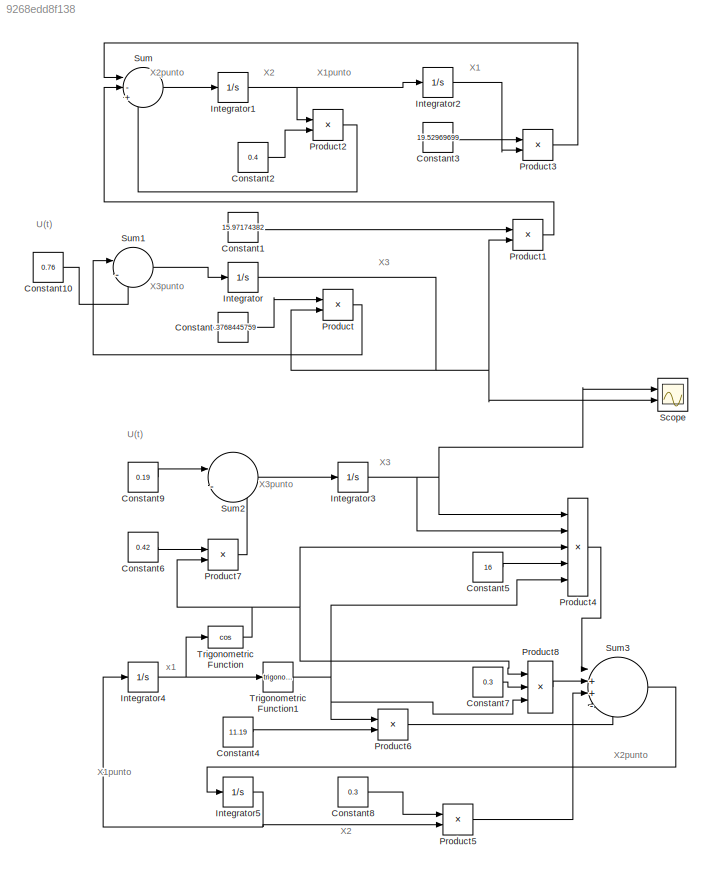
MODEL slx_9268edd8f138
KIND model
BLOCK [Constant] Constant
  Value = 0.3768445759
BLOCK [Constant] Constant1
  Value = 15.97174382
BLOCK [Constant] Constant10
  Value = 0.76
BLOCK [Constant] Constant2
  Value = 0.4
BLOCK [Constant] Constant3
  Value = 19.52969699
BLOCK [Constant] Constant4
  Value = 11.19
BLOCK [Constant] Constant5
  Value = 16
BLOCK [Constant] Constant6
  Value = 0.42
BLOCK [Constant] Constant7
  Value = 0.3
BLOCK [Constant] Constant8
  Value = 0.3
BLOCK [Constant] Constant9
  Value = 0.19
BLOCK [Integrator] Integrator
  InitialCondition = 3
  Ports = [1, 1]
BLOCK [Integrator] Integrator1
  Ports = [1, 1]
BLOCK [Integrator] Integrator2
  Ports = [1, 1]
BLOCK [Integrator] Integrator3
  InitialCondition = -1
  Ports = [1, 1]
BLOCK [Integrator] Integrator4
  InitialCondition = 1
  Ports = [1, 1]
BLOCK [Integrator] Integrator5
  Ports = [1, 1]
BLOCK [Product] Product
  InputSameDT = off
  OutDataTypeStr = Inherit: Inherit via internal rule
  Ports = [2, 1]
  RndMeth = Floor
  SaturateOnIntegerOverflow = off
BLOCK [Product] Product1
  InputSameDT = off
  OutDataTypeStr = Inherit: Inherit via internal rule
  Ports = [2, 1]
  RndMeth = Floor
  SaturateOnIntegerOverflow = off
BLOCK [Product] Product2
  InputSameDT = off
  OutDataTypeStr = Inherit: Inherit via internal rule
  Ports = [2, 1]
  RndMeth = Floor
  SaturateOnIntegerOverflow = off
BLOCK [Product] Product3
  InputSameDT = off
  OutDataTypeStr = Inherit: Inherit via internal rule
  Ports = [2, 1]
  RndMeth = Floor
  SaturateOnIntegerOverflow = off
BLOCK [Product] Product4
  Inputs = 5
  OutDataTypeStr = Inherit: Inherit via internal rule
  Ports = [5, 1]
  RndMeth = Floor
  SaturateOnIntegerOverflow = off
BLOCK [Product] Product5
  InputSameDT = off
  OutDataTypeStr = Inherit: Inherit via internal rule
  Ports = [2, 1]
  RndMeth = Floor
  SaturateOnIntegerOverflow = off
BLOCK [Product] Product6
  InputSameDT = off
  OutDataTypeStr = Inherit: Inherit via internal rule
  Ports = [2, 1]
  RndMeth = Floor
  SaturateOnIntegerOverflow = off
BLOCK [Product] Product7
  InputSameDT = off
  OutDataTypeStr = Inherit: Inherit via internal rule
  Ports = [2, 1]
  RndMeth = Floor
  SaturateOnIntegerOverflow = off
BLOCK [Product] Product8
  InputSameDT = off
  Inputs = 3
  OutDataTypeStr = Inherit: Inherit via internal rule
  Ports = [3, 1]
  RndMeth = Floor
  SaturateOnIntegerOverflow = off
BLOCK [Scope] Scope
  Floating = off
  LimitDataPoints = off
  NumInputPorts = 2
  Ports = [2]
  ShowLegends = off
  YMax = 5~5
  YMin = -5~-5
  ZoomMode = xonly
BLOCK [Sum] Sum
  IconShape = round
  InputSameDT = off
  Inputs = |-+-
  OutDataTypeStr = Inherit: Inherit via internal rule
  Ports = [3, 1]
  SaturateOnIntegerOverflow = off
BLOCK [Sum] Sum1
  IconShape = round
  InputSameDT = off
  Inputs = |--
  OutDataTypeStr = Inherit: Inherit via internal rule
  Ports = [2, 1]
  SaturateOnIntegerOverflow = off
BLOCK [Sum] Sum2
  IconShape = round
  InputSameDT = off
  Inputs = |-+
  OutDataTypeStr = Inherit: Inherit via internal rule
  Ports = [2, 1]
  SaturateOnIntegerOverflow = off
BLOCK [Sum] Sum3
  IconShape = round
  InputSameDT = off
  Inputs = |++--
  OutDataTypeStr = Inherit: Inherit via internal rule
  Ports = [4, 1]
  SaturateOnIntegerOverflow = off
BLOCK [Trigonometry] Trigonometric Function
  Operator = cos
  Ports = [1, 1]
BLOCK [Trigonometry] Trigonometric Function1
  Ports = [1, 1]
ANNOTATION (root): U(t)
ANNOTATION (root): X1
ANNOTATION (root): X1punto
ANNOTATION (root): X2
ANNOTATION (root): X2punto
ANNOTATION (root): X3
ANNOTATION (root): X3punto
ANNOTATION (root): x1
LINE Constant10:1 -> Sum1:2
LINE Constant1:1 -> Product1:1
LINE Constant2:1 -> Product2:2
LINE Constant3:1 -> Product3:1
LINE Constant4:1 -> Product6:2
LINE Constant5:1 -> Product4:4
LINE Constant6:1 -> Product7:1
LINE Constant7:1 -> Product8:2
LINE Constant8:1 -> Product5:1
LINE Constant9:1 -> Sum2:1
LINE Constant:1 -> Product:1
NET Integrator1:1 -> Integrator2:1, Product2:1
LINE Integrator2:1 -> Product3:2
NET Integrator3:1 -> Product4:1, Product4:2, Scope:1
NET Integrator4:1 -> Trigonometric Function1:1, Trigonometric Function:1
NET Integrator5:1 -> Integrator4:1, Product5:2
NET Integrator:1 -> Product1:2, Product:2, Scope:2
LINE Product1:1 -> Sum:2
LINE Product2:1 -> Sum:3
LINE Product3:1 -> Sum:1
LINE Product4:1 -> Sum3:1
LINE Product5:1 -> Sum3:3
LINE Product6:1 -> Sum3:4
LINE Product7:1 -> Sum2:2
LINE Product8:1 -> Sum3:2
LINE Product:1 -> Sum1:1
LINE Sum1:1 -> Integrator:1
LINE Sum2:1 -> Integrator3:1
LINE Sum3:1 -> Integrator5:1
LINE Sum:1 -> Integrator1:1
NET Trigonometric Function1:1 -> Product4:5, Product6:1, Product8:3
NET Trigonometric Function:1 -> Product4:3, Product7:2, Product8:1
note: NET lines group one-source signal fan-out (src -> all destinations, sorted); 1:1 wires keep LINE
